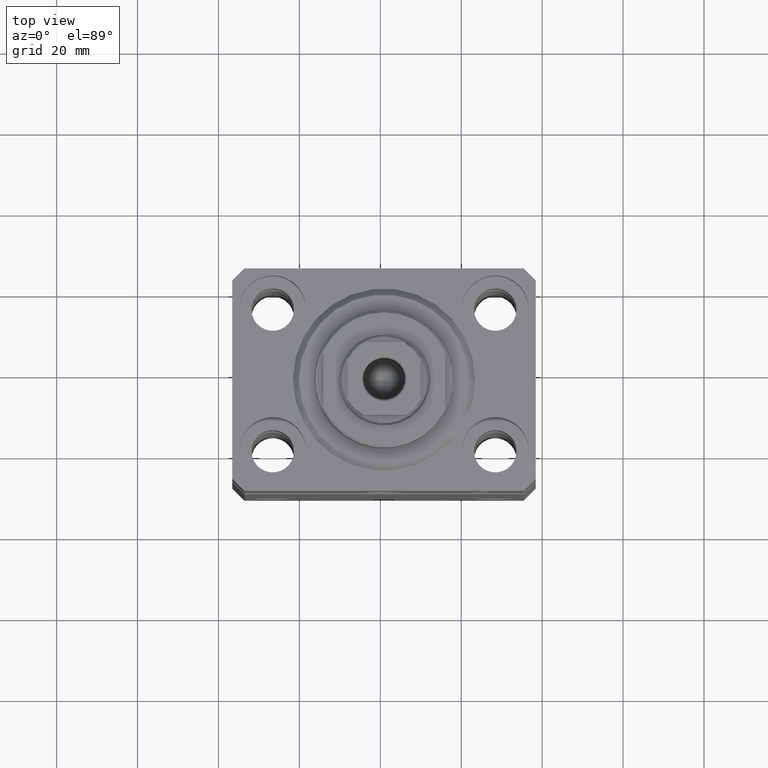
[diagram: clean part render]
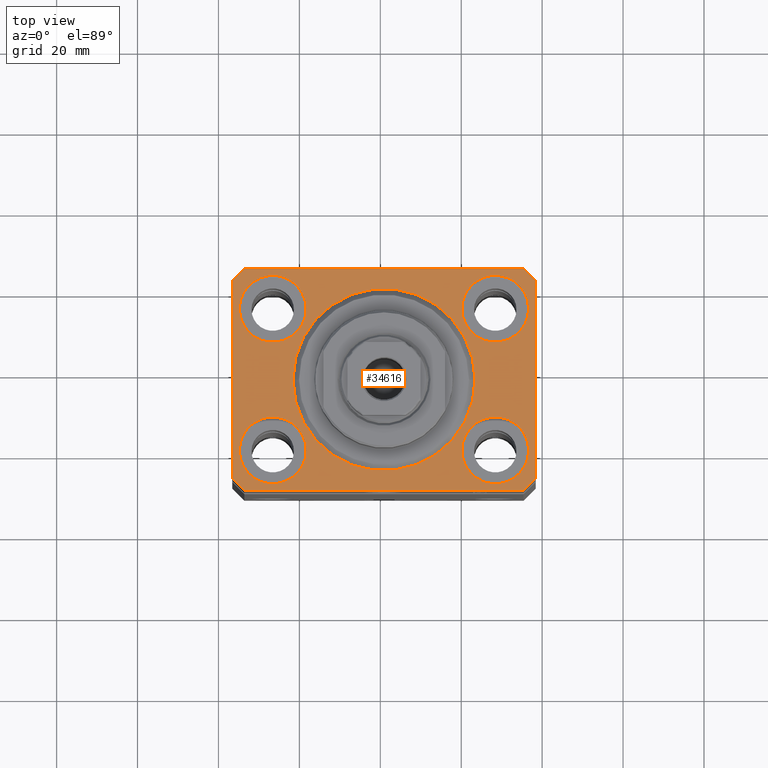
[diagram: same view with one face highlighted and labeled with its STEP entity id]
A machine part, top view. The second image highlights one B-rep face of the part: STEP entity #34616.
In plain terms, the highlighted planar face has unit normal (0, 0, 1).
Its self-contained STEP definition (entity closure, byte-faithful):
#748 = CARTESIAN_POINT ( 'NONE',  ( 34.50000000000056843, 27.50000000000000000, 0.000000000000000000 ) ) ;
#1676 = ORIENTED_EDGE ( 'NONE', *, *, #39430, .T. ) ;
#1861 = FACE_BOUND ( 'NONE', #20176, .T. ) ;
#1907 = LINE ( 'NONE', #30095, #13051 ) ;
#2112 = VERTEX_POINT ( 'NONE', #15485 ) ;
#2212 = DIRECTION ( 'NONE',  ( 0.000000000000000000, 0.000000000000000000, 1.000000000000000000 ) ) ;
#2672 = ORIENTED_EDGE ( 'NONE', *, *, #18849, .F. ) ;
#3274 = CIRCLE ( 'NONE', #34273, 8.249999999999992895 ) ;
#3531 = CARTESIAN_POINT ( 'NONE',  ( 34.50000000000056843, 27.50000000000000000, 0.000000000000000000 ) ) ;
#3626 = AXIS2_PLACEMENT_3D ( 'NONE', #5453, #32552, #12257 ) ;
#4653 = EDGE_CURVE ( 'NONE', #27314, #29080, #17836, .T. ) ;
#4706 = LINE ( 'NONE', #39232, #28489 ) ;
#5017 = FACE_BOUND ( 'NONE', #35815, .T. ) ;
#5079 = DIRECTION ( 'NONE',  ( 0.7071067811865474617, 0.7071067811865474617, 0.000000000000000000 ) ) ;
#5205 = VERTEX_POINT ( 'NONE', #748 ) ;
#5453 = CARTESIAN_POINT ( 'NONE',  ( 0.000000000000000000, 0.000000000000000000, 0.000000000000000000 ) ) ;
#5902 = FACE_BOUND ( 'NONE', #21860, .T. ) ;
#6067 = DIRECTION ( 'NONE',  ( 0.000000000000000000, 0.000000000000000000, 1.000000000000000000 ) ) ;
#6118 = DIRECTION ( 'NONE',  ( 0.000000000000000000, 0.000000000000000000, 1.000000000000000000 ) ) ;
#6140 = ORIENTED_EDGE ( 'NONE', *, *, #35332, .T. ) ;
#6151 = EDGE_CURVE ( 'NONE', #24365, #27314, #21272, .T. ) ;
#6345 = VERTEX_POINT ( 'NONE', #22607 ) ;
#6748 = VERTEX_POINT ( 'NONE', #34210 ) ;
#7038 = AXIS2_PLACEMENT_3D ( 'NONE', #8843, #6118, #16297 ) ;
#7649 = DIRECTION ( 'NONE',  ( -0.7071067811865471286, -0.7071067811865479058, 0.000000000000000000 ) ) ;
#7835 = EDGE_CURVE ( 'NONE', #24262, #20905, #35073, .T. ) ;
#7980 = AXIS2_PLACEMENT_3D ( 'NONE', #33780, #44599, #26773 ) ;
#8136 = EDGE_CURVE ( 'NONE', #20905, #24262, #10582, .T. ) ;
#8440 = ORIENTED_EDGE ( 'NONE', *, *, #39251, .F. ) ;
#8618 = PLANE ( 'NONE',  #3626 ) ;
#8682 = CARTESIAN_POINT ( 'NONE',  ( 34.49999999999999289, -27.49999999999999645, 0.000000000000000000 ) ) ;
#8746 = CARTESIAN_POINT ( 'NONE',  ( 27.49999999999999645, 17.50000000000001066, 0.000000000000000000 ) ) ;
#8843 = CARTESIAN_POINT ( 'NONE',  ( 0.000000000000000000, 0.000000000000000000, 0.000000000000000000 ) ) ;
#9039 = ORIENTED_EDGE ( 'NONE', *, *, #6151, .T. ) ;
#9059 = FACE_BOUND ( 'NONE', #21652, .T. ) ;
#9295 = FACE_OUTER_BOUND ( 'NONE', #23136, .T. ) ;
#9482 = ORIENTED_EDGE ( 'NONE', *, *, #15139, .F. ) ;
#10248 = LINE ( 'NONE', #13656, #38235 ) ;
#10250 = CARTESIAN_POINT ( 'NONE',  ( 34.49999999999999289, -27.49999999999999645, 0.000000000000000000 ) ) ;
#10582 = CIRCLE ( 'NONE', #16358, 8.250000000000000000 ) ;
#10803 = CARTESIAN_POINT ( 'NONE',  ( -37.49999999999999289, -24.50000000000000000, 0.000000000000000000 ) ) ;
#10961 = CARTESIAN_POINT ( 'NONE',  ( 0.000000000000000000, 0.000000000000000000, 0.000000000000000000 ) ) ;
#10976 = ORIENTED_EDGE ( 'NONE', *, *, #35806, .F. ) ;
#11585 = AXIS2_PLACEMENT_3D ( 'NONE', #30037, #43823, #37041 ) ;
#12229 = ORIENTED_EDGE ( 'NONE', *, *, #7835, .F. ) ;
#12257 = DIRECTION ( 'NONE',  ( 1.000000000000000000, 0.000000000000000000, -0.000000000000000000 ) ) ;
#12318 = LINE ( 'NONE', #8682, #39737 ) ;
#12345 = CIRCLE ( 'NONE', #28871, 8.250000000000000000 ) ;
#12383 = DIRECTION ( 'NONE',  ( 1.000000000000000000, 0.000000000000000000, 0.000000000000000000 ) ) ;
#12414 = ORIENTED_EDGE ( 'NONE', *, *, #14464, .F. ) ;
#12527 = CARTESIAN_POINT ( 'NONE',  ( -27.50000000000000355, 17.50000000000000000, 0.000000000000000000 ) ) ;
#12862 = VERTEX_POINT ( 'NONE', #23375 ) ;
#12925 = DIRECTION ( 'NONE',  ( 0.000000000000000000, 0.000000000000000000, 1.000000000000000000 ) ) ;
#13051 = VECTOR ( 'NONE', #16347, 1000.000000000000000 ) ;
#13144 = CARTESIAN_POINT ( 'NONE',  ( 27.50000000000000355, -17.50000000000000000, 0.000000000000000000 ) ) ;
#13656 = CARTESIAN_POINT ( 'NONE',  ( 37.50000000000051870, 24.49999999999995381, 0.000000000000000000 ) ) ;
#13755 = CIRCLE ( 'NONE', #11585, 8.250000000000000000 ) ;
#14164 = CARTESIAN_POINT ( 'NONE',  ( 37.50000000000051870, 24.49999999999995381, 0.000000000000000000 ) ) ;
#14299 = DIRECTION ( 'NONE',  ( 0.7071067811865483499, -0.7071067811865466846, 0.000000000000000000 ) ) ;
#14464 = EDGE_CURVE ( 'NONE', #2112, #12862, #34644, .T. ) ;
#14901 = AXIS2_PLACEMENT_3D ( 'NONE', #13144, #12925, #24158 ) ;
#15139 = EDGE_CURVE ( 'NONE', #6748, #17666, #19524, .T. ) ;
#15181 = AXIS2_PLACEMENT_3D ( 'NONE', #10961, #24707, #21326 ) ;
#15485 = CARTESIAN_POINT ( 'NONE',  ( -22.50000000000000355, 2.755455298081545172E-15, 0.000000000000000000 ) ) ;
#15741 = VERTEX_POINT ( 'NONE', #27997 ) ;
#16131 = DIRECTION ( 'NONE',  ( 1.000000000000000000, 0.000000000000000000, 0.000000000000000000 ) ) ;
#16297 = DIRECTION ( 'NONE',  ( 1.000000000000000000, 0.000000000000000000, 0.000000000000000000 ) ) ;
#16347 = DIRECTION ( 'NONE',  ( 1.076236605503979380E-14, 1.000000000000000000, 0.000000000000000000 ) ) ;
#16358 = AXIS2_PLACEMENT_3D ( 'NONE', #34278, #6067, #23445 ) ;
#16973 = CARTESIAN_POINT ( 'NONE',  ( -19.25000000000000355, -17.50000000000000000, 0.000000000000000000 ) ) ;
#17666 = VERTEX_POINT ( 'NONE', #16973 ) ;
#17836 = LINE ( 'NONE', #27986, #34400 ) ;
#18849 = EDGE_CURVE ( 'NONE', #39889, #39206, #3274, .T. ) ;
#18903 = EDGE_CURVE ( 'NONE', #34543, #18992, #4706, .T. ) ;
#18992 = VERTEX_POINT ( 'NONE', #30413 ) ;
#19524 = CIRCLE ( 'NONE', #7980, 8.250000000000000000 ) ;
#20176 = EDGE_LOOP ( 'NONE', ( #22601, #2672 ) ) ;
#20270 = ORIENTED_EDGE ( 'NONE', *, *, #4653, .T. ) ;
#20401 = ORIENTED_EDGE ( 'NONE', *, *, #43373, .T. ) ;
#20905 = VERTEX_POINT ( 'NONE', #32972 ) ;
#21272 = LINE ( 'NONE', #28266, #31420 ) ;
#21326 = DIRECTION ( 'NONE',  ( 1.000000000000000000, 0.000000000000000000, 0.000000000000000000 ) ) ;
#21389 = CARTESIAN_POINT ( 'NONE',  ( 19.25000000000000000, 17.50000000000001066, 0.000000000000000000 ) ) ;
#21652 = EDGE_LOOP ( 'NONE', ( #8440, #36080 ) ) ;
#21860 = EDGE_LOOP ( 'NONE', ( #33639, #12414 ) ) ;
#22601 = ORIENTED_EDGE ( 'NONE', *, *, #33091, .F. ) ;
#22607 = CARTESIAN_POINT ( 'NONE',  ( 37.49999999999999289, -24.50000000000000000, 0.000000000000000000 ) ) ;
#23030 = AXIS2_PLACEMENT_3D ( 'NONE', #8746, #2212, #12383 ) ;
#23136 = EDGE_LOOP ( 'NONE', ( #42275, #32921, #20401, #9039, #20270, #28357, #1676, #6140 ) ) ;
#23375 = CARTESIAN_POINT ( 'NONE',  ( 22.50000000000000355, 0.000000000000000000, 0.000000000000000000 ) ) ;
#23445 = DIRECTION ( 'NONE',  ( 1.000000000000000000, 0.000000000000000000, 0.000000000000000000 ) ) ;
#24158 = DIRECTION ( 'NONE',  ( 1.000000000000000000, 0.000000000000000000, 0.000000000000000000 ) ) ;
#24262 = VERTEX_POINT ( 'NONE', #30885 ) ;
#24365 = VERTEX_POINT ( 'NONE', #10803 ) ;
#24707 = DIRECTION ( 'NONE',  ( 0.000000000000000000, 0.000000000000000000, 1.000000000000000000 ) ) ;
#24831 = DIRECTION ( 'NONE',  ( 1.000000000000000000, 0.000000000000000000, 0.000000000000000000 ) ) ;
#25306 = CARTESIAN_POINT ( 'NONE',  ( -37.49999999999999289, 24.50000000000000000, 0.000000000000000000 ) ) ;
#25311 = CIRCLE ( 'NONE', #42573, 8.250000000000000000 ) ;
#26325 = VERTEX_POINT ( 'NONE', #14164 ) ;
#26603 = VECTOR ( 'NONE', #35121, 1000.000000000000000 ) ;
#26773 = DIRECTION ( 'NONE',  ( 1.000000000000000000, 0.000000000000000000, 0.000000000000000000 ) ) ;
#26860 = DIRECTION ( 'NONE',  ( 0.000000000000000000, 0.000000000000000000, 1.000000000000000000 ) ) ;
#26929 = CARTESIAN_POINT ( 'NONE',  ( -34.49999999999998579, -27.49999999999999645, 0.000000000000000000 ) ) ;
#27133 = VERTEX_POINT ( 'NONE', #37816 ) ;
#27314 = VERTEX_POINT ( 'NONE', #26929 ) ;
#27395 = DIRECTION ( 'NONE',  ( -0.7071067811865356934, 0.7071067811865594521, 0.000000000000000000 ) ) ;
#27986 = CARTESIAN_POINT ( 'NONE',  ( -34.49999999999998579, -27.49999999999999645, 0.000000000000000000 ) ) ;
#27997 = CARTESIAN_POINT ( 'NONE',  ( -19.25000000000000355, 17.50000000000000000, 0.000000000000000000 ) ) ;
#28233 = CARTESIAN_POINT ( 'NONE',  ( -27.50000000000000355, -17.50000000000000000, 0.000000000000000000 ) ) ;
#28266 = CARTESIAN_POINT ( 'NONE',  ( -37.49999999999999289, -24.50000000000000000, 0.000000000000000000 ) ) ;
#28357 = ORIENTED_EDGE ( 'NONE', *, *, #41148, .T. ) ;
#28366 = EDGE_CURVE ( 'NONE', #12862, #2112, #38044, .T. ) ;
#28489 = VECTOR ( 'NONE', #7649, 1000.000000000000000 ) ;
#28672 = DIRECTION ( 'NONE',  ( 0.000000000000000000, 0.000000000000000000, 1.000000000000000000 ) ) ;
#28871 = AXIS2_PLACEMENT_3D ( 'NONE', #12527, #30319, #16131 ) ;
#29080 = VERTEX_POINT ( 'NONE', #10250 ) ;
#29525 = CIRCLE ( 'NONE', #23030, 8.249999999999992895 ) ;
#30037 = CARTESIAN_POINT ( 'NONE',  ( -27.50000000000000355, 17.50000000000000000, 0.000000000000000000 ) ) ;
#30095 = CARTESIAN_POINT ( 'NONE',  ( 37.49999999999999289, -24.50000000000000000, 0.000000000000000000 ) ) ;
#30319 = DIRECTION ( 'NONE',  ( 0.000000000000000000, 0.000000000000000000, 1.000000000000000000 ) ) ;
#30413 = CARTESIAN_POINT ( 'NONE',  ( -37.49999999999999289, 24.50000000000000000, 0.000000000000000000 ) ) ;
#30885 = CARTESIAN_POINT ( 'NONE',  ( 19.25000000000000000, -17.50000000000000000, 0.000000000000000000 ) ) ;
#31420 = VECTOR ( 'NONE', #14299, 1000.000000000000000 ) ;
#31663 = CARTESIAN_POINT ( 'NONE',  ( -34.49999999999999289, 27.50000000000000000, 0.000000000000000000 ) ) ;
#32210 = EDGE_CURVE ( 'NONE', #5205, #34543, #41892, .T. ) ;
#32552 = DIRECTION ( 'NONE',  ( 0.000000000000000000, 0.000000000000000000, 1.000000000000000000 ) ) ;
#32921 = ORIENTED_EDGE ( 'NONE', *, *, #18903, .T. ) ;
#32972 = CARTESIAN_POINT ( 'NONE',  ( 35.75000000000000711, -17.50000000000000000, 0.000000000000000000 ) ) ;
#33091 = EDGE_CURVE ( 'NONE', #39206, #39889, #29525, .T. ) ;
#33639 = ORIENTED_EDGE ( 'NONE', *, *, #28366, .F. ) ;
#33661 = CARTESIAN_POINT ( 'NONE',  ( 35.74999999999999289, 17.50000000000001066, 0.000000000000000000 ) ) ;
#33780 = CARTESIAN_POINT ( 'NONE',  ( -27.50000000000000355, -17.50000000000000000, 0.000000000000000000 ) ) ;
#34210 = CARTESIAN_POINT ( 'NONE',  ( -35.75000000000000711, -17.50000000000000000, 0.000000000000000000 ) ) ;
#34273 = AXIS2_PLACEMENT_3D ( 'NONE', #44465, #26860, #40623 ) ;
#34278 = CARTESIAN_POINT ( 'NONE',  ( 27.50000000000000355, -17.50000000000000000, 0.000000000000000000 ) ) ;
#34400 = VECTOR ( 'NONE', #34769, 1000.000000000000000 ) ;
#34543 = VERTEX_POINT ( 'NONE', #31663 ) ;
#34616 = ADVANCED_FACE ( 'NONE', ( #5017, #43828, #1861, #9059, #5902, #9295 ), #8618, .T. ) ;
#34644 = CIRCLE ( 'NONE', #15181, 22.50000000000000355 ) ;
#34769 = DIRECTION ( 'NONE',  ( 1.000000000000000000, 0.000000000000000000, 0.000000000000000000 ) ) ;
#35073 = CIRCLE ( 'NONE', #14901, 8.250000000000000000 ) ;
#35121 = DIRECTION ( 'NONE',  ( -1.000000000000000000, 0.000000000000000000, 0.000000000000000000 ) ) ;
#35332 = EDGE_CURVE ( 'NONE', #26325, #5205, #10248, .T. ) ;
#35687 = DIRECTION ( 'NONE',  ( 0.000000000000000000, -1.000000000000000000, 0.000000000000000000 ) ) ;
#35806 = EDGE_CURVE ( 'NONE', #17666, #6748, #25311, .T. ) ;
#35815 = EDGE_LOOP ( 'NONE', ( #10976, #9482 ) ) ;
#36080 = ORIENTED_EDGE ( 'NONE', *, *, #39487, .F. ) ;
#37041 = DIRECTION ( 'NONE',  ( 1.000000000000000000, 0.000000000000000000, 0.000000000000000000 ) ) ;
#37816 = CARTESIAN_POINT ( 'NONE',  ( -35.75000000000000711, 17.50000000000000000, 0.000000000000000000 ) ) ;
#38044 = CIRCLE ( 'NONE', #7038, 22.50000000000000355 ) ;
#38235 = VECTOR ( 'NONE', #27395, 1000.000000000000114 ) ;
#38622 = LINE ( 'NONE', #25306, #44124 ) ;
#39206 = VERTEX_POINT ( 'NONE', #33661 ) ;
#39232 = CARTESIAN_POINT ( 'NONE',  ( -34.49999999999999289, 27.50000000000000000, 0.000000000000000000 ) ) ;
#39251 = EDGE_CURVE ( 'NONE', #15741, #27133, #13755, .T. ) ;
#39430 = EDGE_CURVE ( 'NONE', #6345, #26325, #1907, .T. ) ;
#39487 = EDGE_CURVE ( 'NONE', #27133, #15741, #12345, .T. ) ;
#39737 = VECTOR ( 'NONE', #5079, 1000.000000000000114 ) ;
#39889 = VERTEX_POINT ( 'NONE', #21389 ) ;
#40623 = DIRECTION ( 'NONE',  ( 1.000000000000000000, 0.000000000000000000, 0.000000000000000000 ) ) ;
#41148 = EDGE_CURVE ( 'NONE', #29080, #6345, #12318, .T. ) ;
#41299 = EDGE_LOOP ( 'NONE', ( #41468, #12229 ) ) ;
#41468 = ORIENTED_EDGE ( 'NONE', *, *, #8136, .F. ) ;
#41892 = LINE ( 'NONE', #3531, #26603 ) ;
#42275 = ORIENTED_EDGE ( 'NONE', *, *, #32210, .T. ) ;
#42573 = AXIS2_PLACEMENT_3D ( 'NONE', #28233, #28672, #24831 ) ;
#43373 = EDGE_CURVE ( 'NONE', #18992, #24365, #38622, .T. ) ;
#43823 = DIRECTION ( 'NONE',  ( 0.000000000000000000, 0.000000000000000000, 1.000000000000000000 ) ) ;
#43828 = FACE_BOUND ( 'NONE', #41299, .T. ) ;
#44124 = VECTOR ( 'NONE', #35687, 1000.000000000000000 ) ;
#44465 = CARTESIAN_POINT ( 'NONE',  ( 27.49999999999999645, 17.50000000000001066, 0.000000000000000000 ) ) ;
#44599 = DIRECTION ( 'NONE',  ( 0.000000000000000000, 0.000000000000000000, 1.000000000000000000 ) ) ;